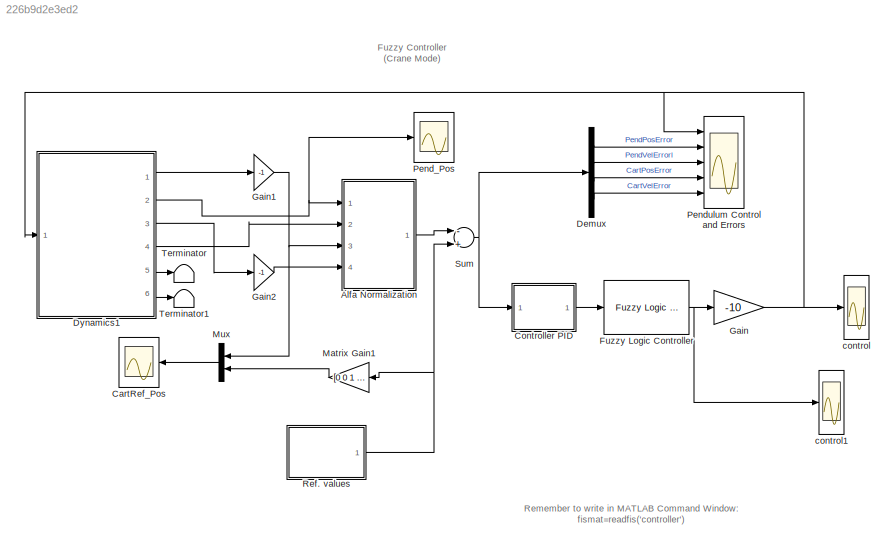
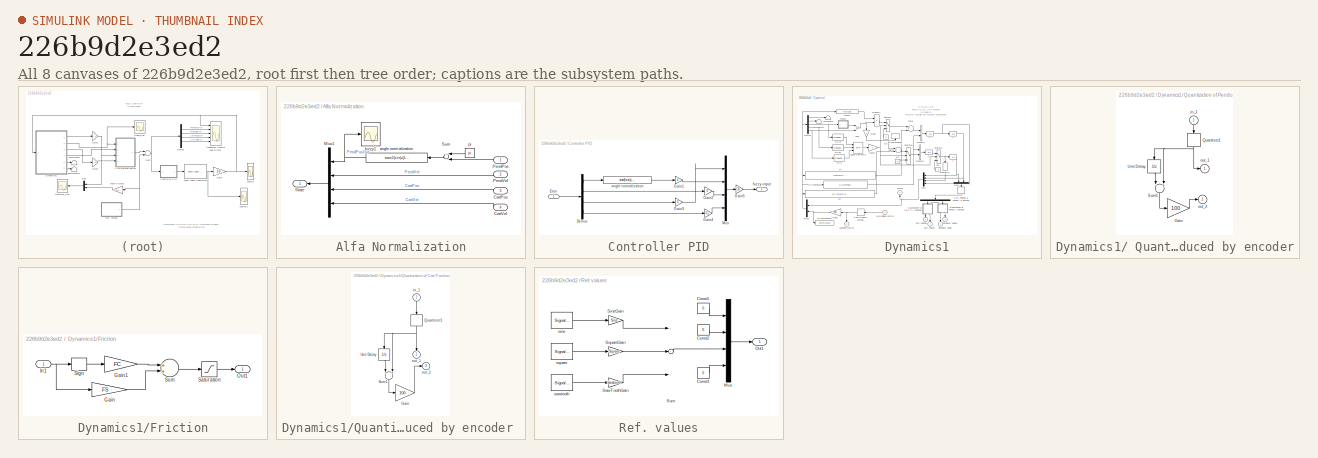
[diagram: thumbnail index - all 8 canvases of the model, root first then tree order]
MODEL slx_226b9d2e3ed2
KIND model
CONFIG AbsTol = 1e-6
CONFIG FixedStep = 0.01
CONFIG MaxStep = auto
CONFIG MinStep = auto
CONFIG RelTol = 1e-3
CONFIG SampleTimeConstraint = Unconstrained
CONFIG Solver = ode5
CONFIG SolverMode = SingleTasking
CONFIG SolverName = ode5
CONFIG StartTime = 0.0
CONFIG StopTime = 100
BLOCK [SubSystem] Alfa Normalization
  Ports = [4, 1]
  RequestExecContextInheritance = off
BLOCK [Inport] Alfa Normalization/CartPos
  IconDisplay = Port number
  Port = 3
BLOCK [Inport] Alfa Normalization/CartVel
  IconDisplay = Port number
  Port = 4
BLOCK [Mux] Alfa Normalization/Mux1
  Ports = [4, 1]
BLOCK [Inport] Alfa Normalization/PendPos
  IconDisplay = Port number
BLOCK [Inport] Alfa Normalization/PendVel
  IconDisplay = Port number
  Port = 2
BLOCK [Outport] Alfa Normalization/State
  IconDisplay = Port number
  InitialOutput = 0
BLOCK [Sum] Alfa Normalization/Sum
  Ports = [2, 1]
BLOCK [Fcn] Alfa Normalization/angle normalization
  Expr = atan2(sin(u[1]),cos(u[1]))
BLOCK [Scope] Alfa Normalization/fuzzy1
  DataFormat = StructureWithTime
  ExtModeLoggingTrig = on
  ExtModeUploadOption = log
  Floating = off
  MaxDataPoints = 50000
  NumInputPorts = 1
  Ports = [1]
  SampleTime = 0
  SaveName = Cart_refpos5
  SaveToWorkspace = on
  TimeRange = 60
  YMax = 3.5
  YMin = -3.5
BLOCK [Constant] Alfa Normalization/pi
  Value = pi
BLOCK [Scope] CartRef_Pos
  DataFormat = StructureWithTime
  ExtModeLoggingTrig = on
  ExtModeUploadOption = log
  Floating = off
  MaxDataPoints = 50000
  NumInputPorts = 1
  Ports = [1]
  SampleTime = 0
  SaveName = Cart_refpos1
  SaveToWorkspace = on
  TimeRange = 60
  YMax = 0.3
  YMin = -0.3
BLOCK [SubSystem] Controller PID
  Ports = [1, 1]
  RequestExecContextInheritance = off
BLOCK [Demux] Controller PID/Demux
  Ports = [1, 4]
BLOCK [Inport] Controller PID/Error
  IconDisplay = Port number
BLOCK [Gain] Controller PID/Gain1
  Gain = 4
BLOCK [Gain] Controller PID/Gain2
  Gain = 0
BLOCK [Gain] Controller PID/Gain3
  Gain = 3
BLOCK [Gain] Controller PID/Gain4
  Gain = 0.2
BLOCK [Gain] Controller PID/Gain5
  Gain = 10
BLOCK [Mux] Controller PID/Mux
  DisplayOption = bar
  Ports = [4, 1]
BLOCK [Fcn] Controller PID/angle normalization
  Expr = atan2(sin(u),cos(u))
BLOCK [Outport] Controller PID/fuzzy-input
  IconDisplay = Port number
  InitialOutput = 0
BLOCK [Demux] Demux
  Ports = [1, 4]
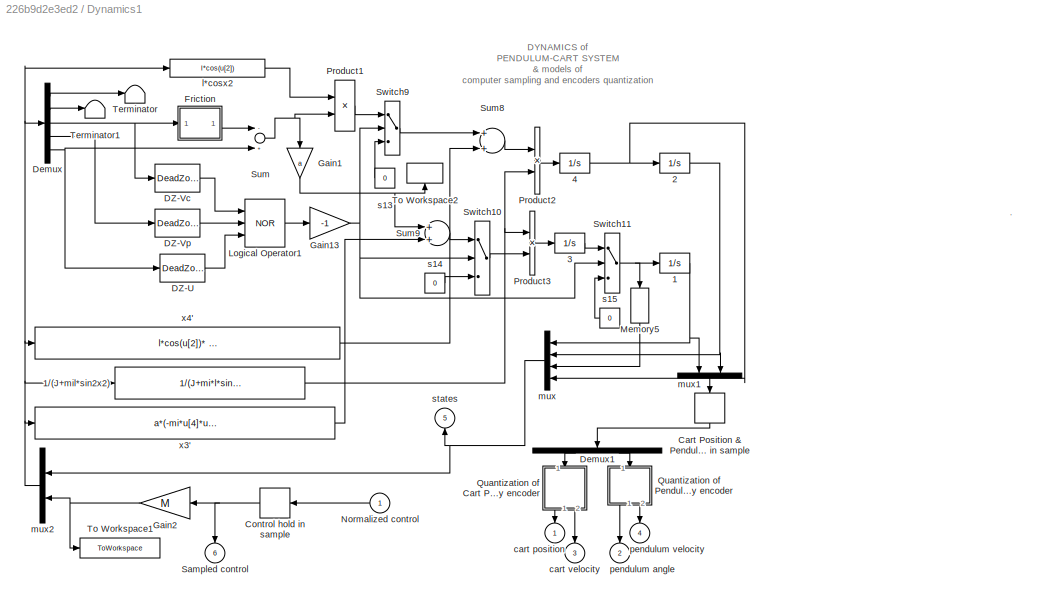
BLOCK [SubSystem] Dynamics1
  Ports = [1, 6]
  RequestExecContextInheritance = off
  ShowPortLabels = none
BLOCK [SubSystem] Dynamics1/ Quantization of Pendulum Angle introduced by encoder
  Ports = [1, 2]
  RequestExecContextInheritance = off
  ShowPortLabels = none
BLOCK [Gain] Dynamics1/ Quantization of Pendulum Angle introduced by encoder/Gain
  Gain = 100
BLOCK [Quantizer] Dynamics1/ Quantization of Pendulum Angle introduced by encoder/Quantizer1
  QuantizationInterval = 5.7053e-005
BLOCK [Sum] Dynamics1/ Quantization of Pendulum Angle introduced by encoder/Sum1
  Inputs = -+
  Ports = [2, 1]
BLOCK [UnitDelay] Dynamics1/ Quantization of Pendulum Angle introduced by encoder/Unit Delay
  InitialCondition = x_ini(2)
  SampleTime = 0.01
BLOCK [Inport] Dynamics1/ Quantization of Pendulum Angle introduced by encoder/in_1
  IconDisplay = Port number
BLOCK [Outport] Dynamics1/ Quantization of Pendulum Angle introduced by encoder/out_1
  IconDisplay = Port number
  InitialOutput = 0
BLOCK [Outport] Dynamics1/ Quantization of Pendulum Angle introduced by encoder/out_2
  IconDisplay = Port number
  InitialOutput = 0
  Port = 2
BLOCK [Integrator] Dynamics1/1
  InitialCondition = x_ini(1)
  Ports = [1, 1]
BLOCK [Fcn] Dynamics1/1//(J+mil*sin2x2)
  Expr = 1/(J+mi*l*sin(u[2])*sin(u[2]))
BLOCK [Integrator] Dynamics1/2
  InitialCondition = x_ini(2)
  Ports = [1, 1]
BLOCK [Integrator] Dynamics1/3
  InitialCondition = x_ini(3)
  Ports = [1, 1]
BLOCK [Integrator] Dynamics1/4
  InitialCondition = x_ini(4)
  Ports = [1, 1]
BLOCK [ZeroOrderHold] Dynamics1/Cart Position & Pendulum Angle hold in sample
  SampleTime = 0.01
BLOCK [ZeroOrderHold] Dynamics1/Control hold in sample
  SampleTime = 0.01
BLOCK [DeadZone] Dynamics1/DZ-U
  LowerValue = -DZu
  UpperValue = DZu
BLOCK [DeadZone] Dynamics1/DZ-Vc
  LowerValue = -DZcv
  UpperValue = DZcv
BLOCK [DeadZone] Dynamics1/DZ-Vp
  LowerValue = -DZcp
  UpperValue = DZcp
BLOCK [Demux] Dynamics1/Demux
  Outputs = 5
  Ports = [1, 5]
BLOCK [Demux] Dynamics1/Demux1
  Outputs = 2
  Ports = [1, 2]
BLOCK [SubSystem] Dynamics1/Friction
  Ports = [1, 1]
  RequestExecContextInheritance = off
BLOCK [Gain] Dynamics1/Friction/Gain
  Gain = FS
BLOCK [Gain] Dynamics1/Friction/Gain1
  Gain = FC
BLOCK [Inport] Dynamics1/Friction/In1
  IconDisplay = Port number
BLOCK [Outport] Dynamics1/Friction/Out1
  IconDisplay = Port number
  InitialOutput = 0
BLOCK [Saturate] Dynamics1/Friction/Saturation
  InputPortMap = u0
  LowerLimit = -1
  Ports = [1, 1]
  UpperLimit = 1
BLOCK [Signum] Dynamics1/Friction/Sign
BLOCK [Sum] Dynamics1/Friction/Sum
  Ports = [2, 1]
BLOCK [Gain] Dynamics1/Gain1
  Gain = a
BLOCK [Gain] Dynamics1/Gain13
  Gain = -1
BLOCK [Gain] Dynamics1/Gain2
  Gain = M
BLOCK [Logic] Dynamics1/Logical Operator1
  Inputs = 3
  Operator = NOR
  Ports = [3, 1]
BLOCK [Memory] Dynamics1/Memory5
BLOCK [Inport] Dynamics1/Normalized control
  IconDisplay = Port number
BLOCK [Product] Dynamics1/Product1
  Ports = [2, 1]
  RndMeth = Floor
BLOCK [Product] Dynamics1/Product2
  Ports = [2, 1]
  RndMeth = Floor
BLOCK [Product] Dynamics1/Product3
  Ports = [2, 1]
  RndMeth = Floor
BLOCK [SubSystem] Dynamics1/Quantization of Cart Position introduced by encoder 
  Ports = [1, 2]
  RequestExecContextInheritance = off
  ShowPortLabels = none
BLOCK [Gain] Dynamics1/Quantization of Cart Position introduced by encoder /Gain
  Gain = 100
BLOCK [Quantizer] Dynamics1/Quantization of Cart Position introduced by encoder /Quantizer1
  QuantizationInterval = 5.7053e-005
BLOCK [Sum] Dynamics1/Quantization of Cart Position introduced by encoder /Sum1
  Inputs = -+
  Ports = [2, 1]
BLOCK [UnitDelay] Dynamics1/Quantization of Cart Position introduced by encoder /Unit Delay
  InitialCondition = x_ini(1)
  SampleTime = 0.01
BLOCK [Inport] Dynamics1/Quantization of Cart Position introduced by encoder /in_1
  IconDisplay = Port number
BLOCK [Outport] Dynamics1/Quantization of Cart Position introduced by encoder /out_1
  IconDisplay = Port number
  InitialOutput = 0
BLOCK [Outport] Dynamics1/Quantization of Cart Position introduced by encoder /out_2
  IconDisplay = Port number
  InitialOutput = 0
  Port = 2
BLOCK [Outport] Dynamics1/Sampled control
  IconDisplay = Port number
  InitialOutput = 0
  Port = 6
BLOCK [Sum] Dynamics1/Sum
  Inputs = -+
  Ports = [2, 1]
BLOCK [Sum] Dynamics1/Sum8
  Ports = [2, 1]
BLOCK [Sum] Dynamics1/Sum9
  Ports = [2, 1]
BLOCK [Switch] Dynamics1/Switch10
BLOCK [Switch] Dynamics1/Switch11
BLOCK [Switch] Dynamics1/Switch9
BLOCK [Terminator] Dynamics1/Terminator
BLOCK [Terminator] Dynamics1/Terminator1
BLOCK [ToWorkspace] Dynamics1/To Workspace1
  MaxDataPoints = 100000
  Ports = [1]
  VariableName = Control_Newton
BLOCK [ToWorkspace] Dynamics1/To Workspace2
  MaxDataPoints = 100000
  Ports = [1]
  VariableName = fric
BLOCK [Outport] Dynamics1/cart position
  IconDisplay = Port number
  InitialOutput = 0
BLOCK [Outport] Dynamics1/cart velocity
  IconDisplay = Port number
  InitialOutput = 0
  Port = 3
BLOCK [Fcn] Dynamics1/l*cosx2
  Expr = l*cos(u[2])
BLOCK [Mux] Dynamics1/mux
  Ports = [4, 1]
BLOCK [Mux] Dynamics1/mux1
  Inputs = 2
  Ports = [2, 1]
BLOCK [Mux] Dynamics1/mux2
  Inputs = [4 1]
  Ports = [2, 1]
BLOCK [Outport] Dynamics1/pendulum angle
  IconDisplay = Port number
  InitialOutput = 0
  Port = 2
BLOCK [Outport] Dynamics1/pendulum velocity
  IconDisplay = Port number
  InitialOutput = 0
  Port = 4
BLOCK [Constant] Dynamics1/s13
  Value = 0
BLOCK [Constant] Dynamics1/s14
  Value = 0
BLOCK [Constant] Dynamics1/s15
  Value = 0
BLOCK [Outport] Dynamics1/states
  IconDisplay = Port number
  InitialOutput = 0
  Port = 5
BLOCK [Fcn] Dynamics1/x3'
  Expr = a*(-mi*u[4]*u[4]*sin(u[2]) )+l*cos(u[2])*(mi*g*sin(u[2])-fp*u[4])
BLOCK [Fcn] Dynamics1/x4'
  Expr = l*cos(u[2])* (-mi*u[4]*u[4]*sin(u[2])) + mi*g*sin(u[2])-fp*u[4]
BLOCK [Reference] Fuzzy Logic Controller  REF=fuzblock/Fuzzy Logic   (lib defined in mdl_858b3b3e7478)
Controller
  Ports = [1, 1]
  SourceBlock = fuzblock/Fuzzy Logic \nController
  SourceType = FIS
  fis = fismat
BLOCK [Gain] Gain
  Gain = -10
BLOCK [Gain] Gain1
  Gain = -1
BLOCK [Gain] Gain2
  Gain = -1
BLOCK [Gain] Matrix Gain1
  Gain = [0 0 1 0]
  Multiplication = Matrix(K*u)
BLOCK [Mux] Mux
  DisplayOption = bar
  Inputs = 2
  Ports = [2, 1]
BLOCK [Scope] Pend_Pos
  DataFormat = StructureWithTime
  ExtModeLoggingTrig = on
  ExtModeUploadOption = log
  Floating = off
  MaxDataPoints = 50000
  NumInputPorts = 1
  Ports = [1]
  SampleTime = 0
  SaveName = Cart_refpos4
  SaveToWorkspace = on
  TimeRange = 60
  YMax = 3.3
  YMin = 2.975
BLOCK [Scope] Pendulum Control and Errors
  DataFormat = StructureWithTime
  ExtModeLoggingTrig = on
  ExtModeUploadOption = log
  Floating = off
  MaxDataPoints = 50000
  NumInputPorts = 5
  Ports = [5]
  SampleTime = 0
  SaveName = States
  SaveToWorkspace = on
  TimeRange = 60
  YMax = 0.75~0.075~0.5~0.5~0.2
  YMin = -0.75~-0.075~-0.5~-0.5~-0.2
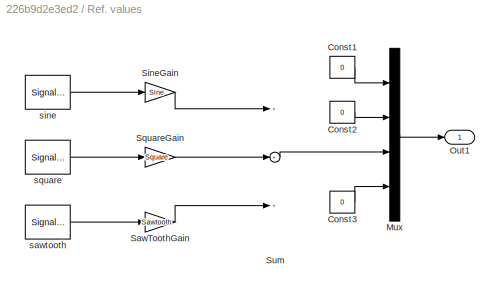
BLOCK [SubSystem] Ref. values
  Ports = [0, 1]
  RequestExecContextInheritance = off
BLOCK [Constant] Ref. values/Const1
  Value = 0
BLOCK [Constant] Ref. values/Const2
  Value = 0
BLOCK [Constant] Ref. values/Const3
  Value = 0
BLOCK [Mux] Ref. values/Mux
  Ports = [4, 1]
BLOCK [Outport] Ref. values/Out1
  IconDisplay = Port number
  InitialOutput = 0
BLOCK [Gain] Ref. values/SawToothGain
  Gain = Sawtooth
BLOCK [Gain] Ref. values/SineGain
  Gain = Sine
BLOCK [Gain] Ref. values/SquareGain
  Gain = Square
BLOCK [Sum] Ref. values/Sum
  Inputs = +++
  Ports = [3, 1]
BLOCK [SignalGenerator] Ref. values/sawtooth
  Amplitude = Amplitude
  Frequency = Frequency
  Ports = [0, 1]
  WaveForm = sawtooth
BLOCK [SignalGenerator] Ref. values/sine
  Amplitude = Amplitude
  Frequency = Frequency
  Ports = [0, 1]
BLOCK [SignalGenerator] Ref. values/square
  Amplitude = Amplitude
  Frequency = Frequency
  Ports = [0, 1]
  WaveForm = square
BLOCK [Sum] Sum
  Inputs = -+
  Ports = [2, 1]
BLOCK [Terminator] Terminator
BLOCK [Terminator] Terminator1
BLOCK [Scope] control
  DataFormat = StructureWithTime
  ExtModeLoggingTrig = on
  ExtModeUploadOption = log
  Floating = off
  MaxDataPoints = 50000
  NumInputPorts = 1
  Ports = [1]
  SampleTime = 0
  SaveName = PID_FUZZY
  SaveToWorkspace = on
  TimeRange = 60
  YMax = 0.3
  YMin = -0.35
BLOCK [Scope] control1
  DataFormat = StructureWithTime
  ExtModeLoggingTrig = on
  ExtModeUploadOption = log
  Floating = off
  MaxDataPoints = 50000
  NumInputPorts = 1
  Ports = [1]
  SampleTime = 0
  SaveName = PID_FUZZY1
  SaveToWorkspace = on
  TimeRange = 60
  YMax = 0.25
  YMin = -0.45
ANNOTATION (root): Fuzzy Controller (Crane Mode)
ANNOTATION (root): Remember to write in MATLAB Command Window: fismat=readfis('controller')
ANNOTATION Dynamics1: .
ANNOTATION Dynamics1: DYNAMICS of PENDULUM-CART SYSTEM & models of computer sampling and encoders quantization
LINE Alfa Normalization/CartPos:1 -> Alfa Normalization/Mux1:3
LINE Alfa Normalization/CartVel:1 -> Alfa Normalization/Mux1:4
LINE Alfa Normalization/Mux1:1 -> Alfa Normalization/State:1
LINE Alfa Normalization/PendPos:1 -> Alfa Normalization/Sum:2
LINE Alfa Normalization/PendVel:1 -> Alfa Normalization/Mux1:2
LINE Alfa Normalization/Sum:1 -> Alfa Normalization/angle normalization:1
NET Alfa Normalization/angle normalization:1 -> Alfa Normalization/Mux1:1, Alfa Normalization/fuzzy1:1
LINE Alfa Normalization/pi:1 -> Alfa Normalization/Sum:1
LINE Alfa Normalization:1 -> Sum:1
LINE Controller PID/Demux:1 -> Controller PID/angle normalization:1
LINE Controller PID/Demux:2 -> Controller PID/Gain2:1
LINE Controller PID/Demux:3 -> Controller PID/Gain3:1
LINE Controller PID/Demux:4 -> Controller PID/Gain4:1
LINE Controller PID/Error:1 -> Controller PID/Demux:1
LINE Controller PID/Gain1:1 -> Controller PID/Mux:2
LINE Controller PID/Gain2:1 -> Controller PID/Mux:3
LINE Controller PID/Gain3:1 -> Controller PID/Mux:1
LINE Controller PID/Gain4:1 -> Controller PID/Mux:4
LINE Controller PID/Gain5:1 -> Controller PID/fuzzy-input:1
LINE Controller PID/Mux:1 -> Controller PID/Gain5:1
LINE Controller PID/angle normalization:1 -> Controller PID/Gain1:1
LINE Controller PID:1 -> Fuzzy Logic Controller:1
LINE Demux:1 -> Pendulum Control and Errors:2
LINE Demux:2 -> Pendulum Control and Errors:3
LINE Demux:3 -> Pendulum Control and Errors:4
LINE Demux:4 -> Pendulum Control and Errors:5
LINE Dynamics1/ Quantization of Pendulum Angle introduced by encoder/Gain:1 -> Dynamics1/ Quantization of Pendulum Angle introduced by encoder/out_2:1
NET Dynamics1/ Quantization of Pendulum Angle introduced by encoder/Quantizer1:1 -> Dynamics1/ Quantization of Pendulum Angle introduced by encoder/Sum1:2, Dynamics1/ Quantization of Pendulum Angle introduced by encoder/Unit Delay:1, Dynamics1/ Quantization of Pendulum Angle introduced by encoder/out_1:1
LINE Dynamics1/ Quantization of Pendulum Angle introduced by encoder/Sum1:1 -> Dynamics1/ Quantization of Pendulum Angle introduced by encoder/Gain:1
LINE Dynamics1/ Quantization of Pendulum Angle introduced by encoder/Unit Delay:1 -> Dynamics1/ Quantization of Pendulum Angle introduced by encoder/Sum1:1
LINE Dynamics1/ Quantization of Pendulum Angle introduced by encoder/in_1:1 -> Dynamics1/ Quantization of Pendulum Angle introduced by encoder/Quantizer1:1
LINE Dynamics1/ Quantization of Pendulum Angle introduced by encoder:1 -> Dynamics1/pendulum angle:1
LINE Dynamics1/ Quantization of Pendulum Angle introduced by encoder:2 -> Dynamics1/pendulum velocity:1
NET Dynamics1/1//(J+mil*sin2x2):1 -> Dynamics1/Product2:2, Dynamics1/Product3:1
NET Dynamics1/1:1 -> Dynamics1/mux1:1, Dynamics1/mux:1
NET Dynamics1/2:1 -> Dynamics1/mux1:2, Dynamics1/mux:2
LINE Dynamics1/3:1 -> Dynamics1/Switch11:1
NET Dynamics1/4:1 -> Dynamics1/2:1, Dynamics1/mux:4
LINE Dynamics1/Cart Position & Pendulum Angle hold in sample:1 -> Dynamics1/Demux1:1
NET Dynamics1/Control hold in sample:1 -> Dynamics1/Gain2:1, Dynamics1/Sampled control:1
LINE Dynamics1/DZ-U:1 -> Dynamics1/Logical Operator1:3
LINE Dynamics1/DZ-Vc:1 -> Dynamics1/Logical Operator1:1
LINE Dynamics1/DZ-Vp:1 -> Dynamics1/Logical Operator1:2
LINE Dynamics1/Demux1:1 -> Dynamics1/Quantization of Cart Position introduced by encoder :1
LINE Dynamics1/Demux1:2 -> Dynamics1/ Quantization of Pendulum Angle introduced by encoder:1
LINE Dynamics1/Demux:1 -> Dynamics1/Terminator:1
LINE Dynamics1/Demux:2 -> Dynamics1/Terminator1:1
NET Dynamics1/Demux:3 -> Dynamics1/DZ-Vc:1, Dynamics1/Friction:1
LINE Dynamics1/Demux:4 -> Dynamics1/DZ-Vp:1
NET Dynamics1/Demux:5 -> Dynamics1/DZ-U:1, Dynamics1/Sum:2
LINE Dynamics1/Friction/Gain1:1 -> Dynamics1/Friction/Sum:1
LINE Dynamics1/Friction/Gain:1 -> Dynamics1/Friction/Sum:2
NET Dynamics1/Friction/In1:1 -> Dynamics1/Friction/Gain:1, Dynamics1/Friction/Sign:1
LINE Dynamics1/Friction/Saturation:1 -> Dynamics1/Friction/Out1:1
LINE Dynamics1/Friction/Sign:1 -> Dynamics1/Friction/Gain1:1
LINE Dynamics1/Friction/Sum:1 -> Dynamics1/Friction/Saturation:1
LINE Dynamics1/Friction:1 -> Dynamics1/Sum:1
NET Dynamics1/Gain13:1 -> Dynamics1/Switch10:2, Dynamics1/Switch11:2, Dynamics1/Switch9:2
NET Dynamics1/Gain1:1 -> Dynamics1/Sum9:1, Dynamics1/To Workspace2:1
NET Dynamics1/Gain2:1 -> Dynamics1/To Workspace1:1, Dynamics1/mux2:2
LINE Dynamics1/Logical Operator1:1 -> Dynamics1/Gain13:1
LINE Dynamics1/Memory5:1 -> Dynamics1/mux:3
LINE Dynamics1/Normalized control:1 -> Dynamics1/Control hold in sample:1
LINE Dynamics1/Product1:1 -> Dynamics1/Switch9:1
LINE Dynamics1/Product2:1 -> Dynamics1/4:1
LINE Dynamics1/Product3:1 -> Dynamics1/3:1
LINE Dynamics1/Quantization of Cart Position introduced by encoder /Gain:1 -> Dynamics1/Quantization of Cart Position introduced by encoder /out_2:1
NET Dynamics1/Quantization of Cart Position introduced by encoder /Quantizer1:1 -> Dynamics1/Quantization of Cart Position introduced by encoder /Sum1:2, Dynamics1/Quantization of Cart Position introduced by encoder /Unit Delay:1, Dynamics1/Quantization of Cart Position introduced by encoder /out_1:1
LINE Dynamics1/Quantization of Cart Position introduced by encoder /Sum1:1 -> Dynamics1/Quantization of Cart Position introduced by encoder /Gain:1
LINE Dynamics1/Quantization of Cart Position introduced by encoder /Unit Delay:1 -> Dynamics1/Quantization of Cart Position introduced by encoder /Sum1:1
LINE Dynamics1/Quantization of Cart Position introduced by encoder /in_1:1 -> Dynamics1/Quantization of Cart Position introduced by encoder /Quantizer1:1
LINE Dynamics1/Quantization of Cart Position introduced by encoder :1 -> Dynamics1/cart position:1
LINE Dynamics1/Quantization of Cart Position introduced by encoder :2 -> Dynamics1/cart velocity:1
LINE Dynamics1/Sum8:1 -> Dynamics1/Product2:1
LINE Dynamics1/Sum9:1 -> Dynamics1/Switch10:1
NET Dynamics1/Sum:1 -> Dynamics1/Gain1:1, Dynamics1/Product1:2
LINE Dynamics1/Switch10:1 -> Dynamics1/Product3:2
NET Dynamics1/Switch11:1 -> Dynamics1/1:1, Dynamics1/Memory5:1
LINE Dynamics1/Switch9:1 -> Dynamics1/Sum8:1
LINE Dynamics1/l*cosx2:1 -> Dynamics1/Product1:1
LINE Dynamics1/mux1:1 -> Dynamics1/Cart Position & Pendulum Angle hold in sample:1
NET Dynamics1/mux2:1 -> Dynamics1/1//(J+mil*sin2x2):1, Dynamics1/Demux:1, Dynamics1/l*cosx2:1, Dynamics1/x3':1, Dynamics1/x4':1
NET Dynamics1/mux:1 -> Dynamics1/mux2:1, Dynamics1/states:1
LINE Dynamics1/s13:1 -> Dynamics1/Switch9:3
LINE Dynamics1/s14:1 -> Dynamics1/Switch10:3
LINE Dynamics1/s15:1 -> Dynamics1/Switch11:3
LINE Dynamics1/x3':1 -> Dynamics1/Sum9:2
LINE Dynamics1/x4':1 -> Dynamics1/Sum8:2
LINE Dynamics1:1 -> Gain1:1
NET Dynamics1:2 -> Alfa Normalization:1, Pend_Pos:1
LINE Dynamics1:3 -> Gain2:1
LINE Dynamics1:4 -> Alfa Normalization:2
LINE Dynamics1:5 -> Terminator:1
LINE Dynamics1:6 -> Terminator1:1
NET Fuzzy Logic Controller:1 -> Gain:1, control1:1
NET Gain1:1 -> Alfa Normalization:3, Mux:1
LINE Gain2:1 -> Alfa Normalization:4
NET Gain:1 -> Dynamics1:1, Pendulum Control and Errors:1, control:1
LINE Matrix Gain1:1 -> Mux:2
LINE Mux:1 -> CartRef_Pos:1
LINE Ref. values/Const1:1 -> Ref. values/Mux:1
LINE Ref. values/Const2:1 -> Ref. values/Mux:2
LINE Ref. values/Const3:1 -> Ref. values/Mux:4
LINE Ref. values/Mux:1 -> Ref. values/Out1:1
LINE Ref. values/SawToothGain:1 -> Ref. values/Sum:3
LINE Ref. values/SineGain:1 -> Ref. values/Sum:1
LINE Ref. values/SquareGain:1 -> Ref. values/Sum:2
LINE Ref. values/Sum:1 -> Ref. values/Mux:3
LINE Ref. values/sawtooth:1 -> Ref. values/SawToothGain:1
LINE Ref. values/sine:1 -> Ref. values/SineGain:1
LINE Ref. values/square:1 -> Ref. values/SquareGain:1
NET Ref. values:1 -> Matrix Gain1:1, Sum:2
NET Sum:1 -> Controller PID:1, Demux:1
note: NET lines group one-source signal fan-out (src -> all destinations, sorted); 1:1 wires keep LINE
